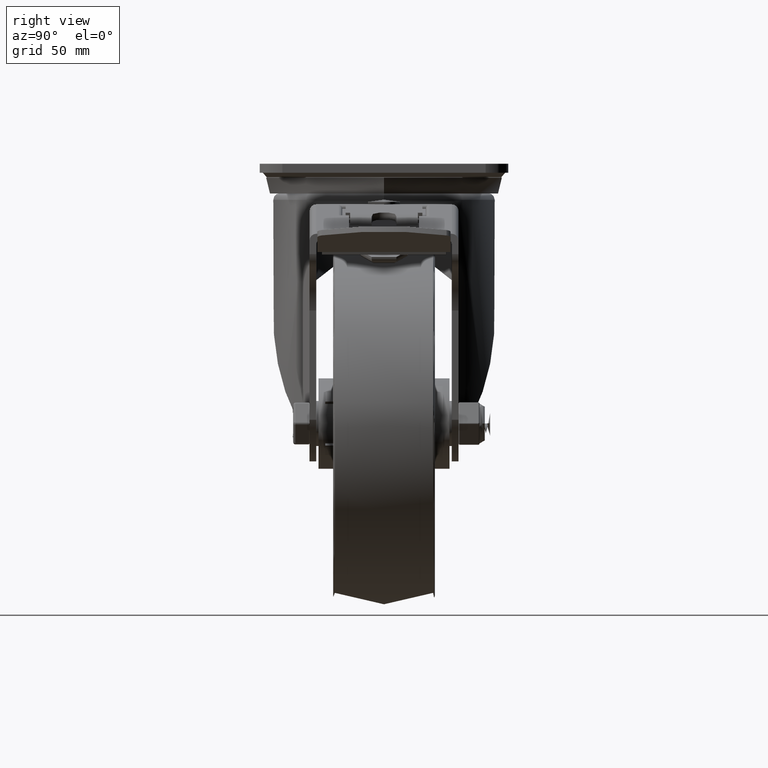
[diagram: clean part render]
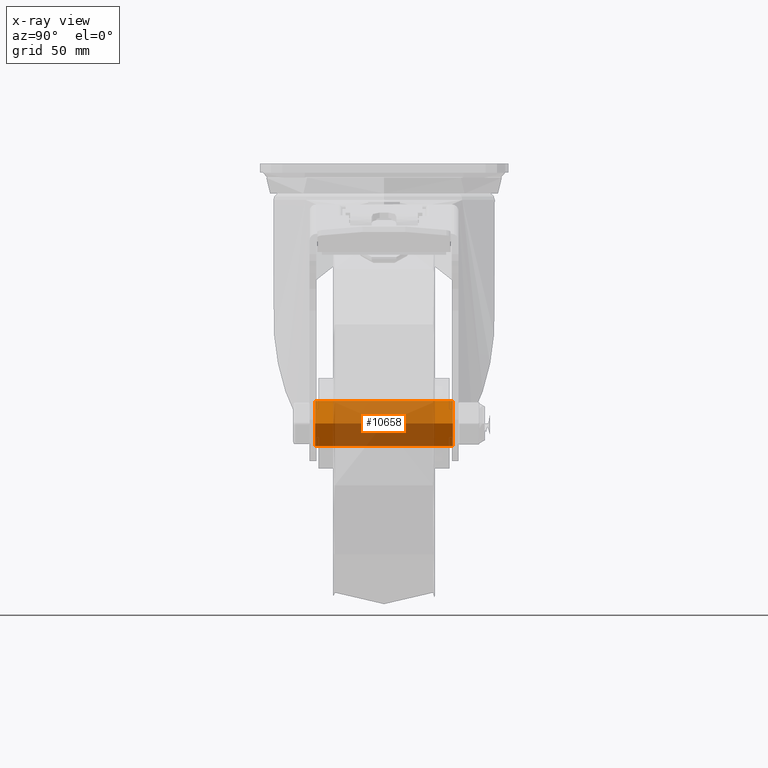
[diagram: x-ray — body ghosted, one internal face saturated and labeled with its STEP entity id]
A machine part, right view, then the same camera in x-ray: the body is ghosted and one INTERNAL B-rep face — a face not visible from any outside direction — is saturated and labeled: STEP entity #10658.
In plain terms, the highlighted cylindrical surface (bore or boss wall) has radius 9.95 mm, axis along (0, -1, 0).
Its self-contained STEP definition (entity closure, byte-faithful):
#1530=FACE_OUTER_BOUND('',#2186,.T.);
#2186=EDGE_LOOP('',(#9112,#9113,#9114,#9115));
#3012=LINE('',#21271,#3843);
#3843=VECTOR('',#14458,9.95);
#4395=CIRCLE('',#11901,9.95);
#4396=CIRCLE('',#11902,9.95);
#5178=VERTEX_POINT('',#21268);
#5179=VERTEX_POINT('',#21270);
#6530=EDGE_CURVE('',#5178,#5178,#4395,.T.);
#6531=EDGE_CURVE('',#5178,#5179,#3012,.T.);
#6532=EDGE_CURVE('',#5179,#5179,#4396,.T.);
#9112=ORIENTED_EDGE('',*,*,#6530,.T.);
#9113=ORIENTED_EDGE('',*,*,#6531,.T.);
#9114=ORIENTED_EDGE('',*,*,#6532,.T.);
#9115=ORIENTED_EDGE('',*,*,#6531,.F.);
#10173=CYLINDRICAL_SURFACE('',#11900,9.95);
#10658=ADVANCED_FACE('',(#1530),#10173,.T.);
#11900=AXIS2_PLACEMENT_3D('',#21267,#14454,#14455);
#11901=AXIS2_PLACEMENT_3D('',#21269,#14456,#14457);
#11902=AXIS2_PLACEMENT_3D('',#21272,#14459,#14460);
#14454=DIRECTION('center_axis',(0.,-1.,-3.49148336110938E-15));
#14455=DIRECTION('ref_axis',(1.,0.,0.));
#14456=DIRECTION('center_axis',(0.,1.,3.49148336110938E-15));
#14457=DIRECTION('ref_axis',(1.,0.,0.));
#14458=DIRECTION('',(0.,1.,3.49148336110938E-15));
#14459=DIRECTION('center_axis',(0.,-1.,-3.49148336110938E-15));
#14460=DIRECTION('ref_axis',(1.,0.,0.));
#21267=CARTESIAN_POINT('Origin',(0.,0.,0.));
#21268=CARTESIAN_POINT('',(-9.95,-30.5,-1.05271718948685E-13));
#21269=CARTESIAN_POINT('Origin',(0.,-30.5,-1.06490242513836E-13));
#21270=CARTESIAN_POINT('',(-9.95,30.5,1.07708766078988E-13));
#21271=CARTESIAN_POINT('',(-9.95,4.25445475284655E-30,-1.21852356515162E-15));
#21272=CARTESIAN_POINT('Origin',(0.,30.5,1.06490242513836E-13));